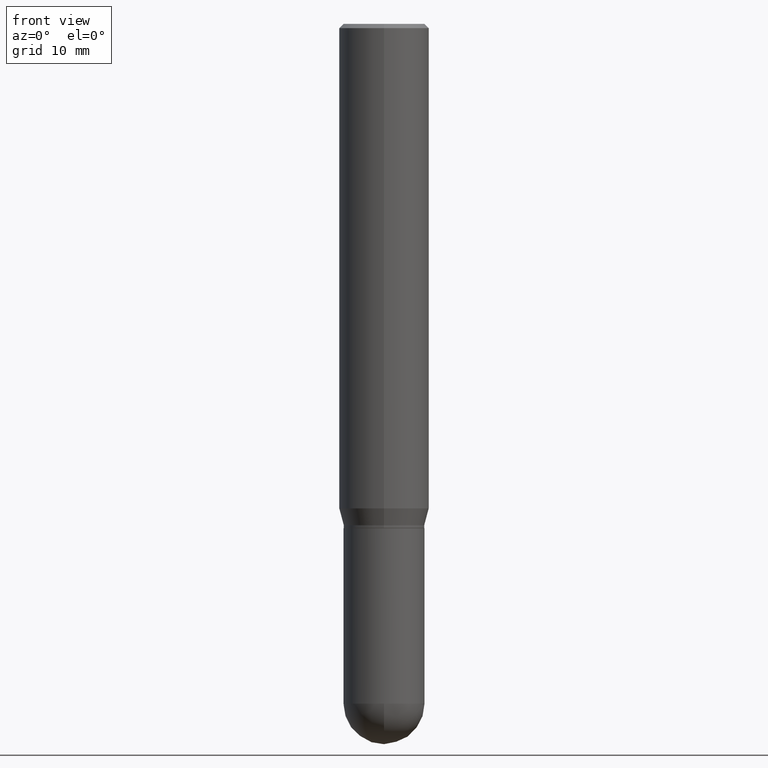
[diagram: clean part render]
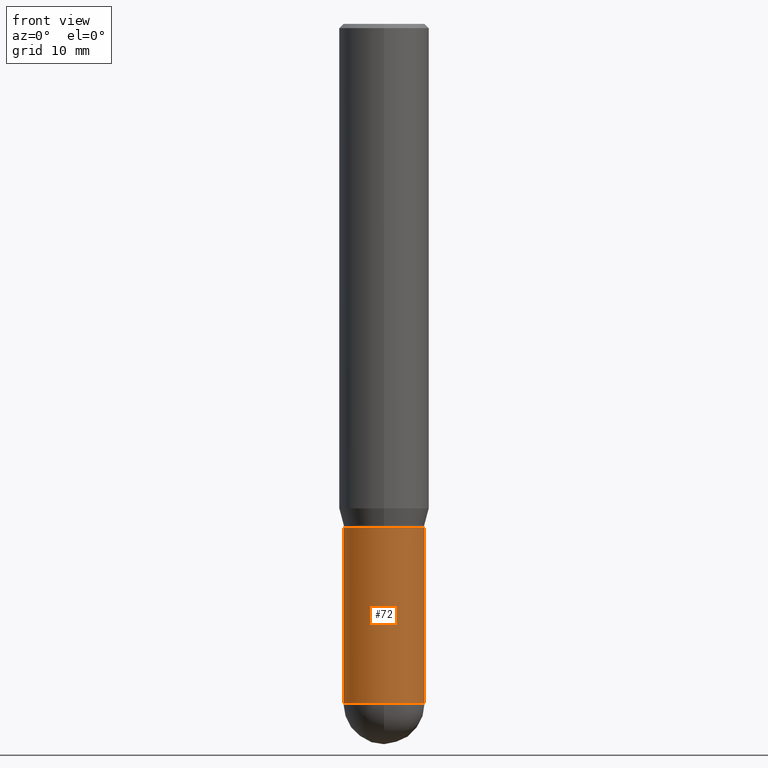
[diagram: same view with one face highlighted and labeled with its STEP entity id]
A machine part, front view. The second image highlights one B-rep face of the part: STEP entity #72.
In plain terms, the highlighted cylindrical surface (partial cylindrical patch) has radius 3.5712 mm, axis along (-0, 0, 1).
Its self-contained STEP definition (entity closure, byte-faithful):
#15 = AXIS2_PLACEMENT_3D ( 'NONE', #444, #243, #335 ) ;
#35 = ORIENTED_EDGE ( 'NONE', *, *, #281, .F. ) ;
#52 = CARTESIAN_POINT ( 'NONE',  ( 5.769839101313211634E-29, -8.237801070866517629E-15, -2.359399999999999942 ) ) ;
#63 = VERTEX_POINT ( 'NONE', #70 ) ;
#70 = CARTESIAN_POINT ( 'NONE',  ( 0.1406000000000000028, -7.091896895458194566E-15, -1.750000000000000222 ) ) ;
#72 = ADVANCED_FACE ( 'NONE', ( #293 ), #238, .T. ) ;
#85 = EDGE_CURVE ( 'NONE', #208, #63, #298, .T. ) ;
#93 = CARTESIAN_POINT ( 'NONE',  ( -9.990230864786434913E-16, -0.1406000000000083017, -2.359399999999999498 ) ) ;
#96 = CARTESIAN_POINT ( 'NONE',  ( 5.769839101313211634E-29, -8.237801070866517629E-15, -2.359399999999999942 ) ) ;
#97 = DIRECTION ( 'NONE',  ( 1.000000000000000000, -6.982962677686270655E-15, 0.000000000000000000 ) ) ;
#139 = ORIENTED_EDGE ( 'NONE', *, *, #313, .T. ) ;
#144 = VERTEX_POINT ( 'NONE', #398 ) ;
#155 = AXIS2_PLACEMENT_3D ( 'NONE', #96, #458, #97 ) ;
#161 = DIRECTION ( 'NONE',  ( 1.000000000000000000, -6.982962677686265133E-15, 0.000000000000000000 ) ) ;
#168 = CARTESIAN_POINT ( 'NONE',  ( 0.1406000000000000583, -8.155751259403701439E-15, -2.359399999999999942 ) ) ;
#175 = LINE ( 'NONE', #460, #391 ) ;
#207 = CARTESIAN_POINT ( 'NONE',  ( 4.279570410823989044E-29, -6.110092342975505460E-15, -1.750000000000000222 ) ) ;
#208 = VERTEX_POINT ( 'NONE', #168 ) ;
#211 = DIRECTION ( 'NONE',  ( -2.445468806185136597E-29, 3.491481338843145583E-15, 1.000000000000000000 ) ) ;
#220 = CARTESIAN_POINT ( 'NONE',  ( -0.1406000000000000028, -6.174923620442310269E-15, -1.750000000000000222 ) ) ;
#222 = AXIS2_PLACEMENT_3D ( 'NONE', #52, #211, #383 ) ;
#227 = ORIENTED_EDGE ( 'NONE', *, *, #236, .F. ) ;
#236 = EDGE_CURVE ( 'NONE', #342, #63, #499, .T. ) ;
#237 = ORIENTED_EDGE ( 'NONE', *, *, #338, .T. ) ;
#238 = CYLINDRICAL_SURFACE ( 'NONE', #15, 0.1406000000000000028 ) ;
#243 = DIRECTION ( 'NONE',  ( -2.445468806185136597E-29, 3.491481338843145583E-15, 1.000000000000000000 ) ) ;
#248 = VERTEX_POINT ( 'NONE', #93 ) ;
#254 = CARTESIAN_POINT ( 'NONE',  ( 0.1406000000000000028, -9.818045524826893030E-16, 6.855904546769086274E-30 ) ) ;
#281 = EDGE_CURVE ( 'NONE', #144, #342, #175, .T. ) ;
#293 = FACE_OUTER_BOUND ( 'NONE', #509, .T. ) ;
#297 = AXIS2_PLACEMENT_3D ( 'NONE', #207, #484, #161 ) ;
#298 = LINE ( 'NONE', #254, #377 ) ;
#311 = DIRECTION ( 'NONE',  ( -2.445468806185136877E-29, 3.491481338843145188E-15, 1.000000000000000000 ) ) ;
#313 = EDGE_CURVE ( 'NONE', #144, #248, #473, .T. ) ;
#335 = DIRECTION ( 'NONE',  ( 1.000000000000000000, -6.982962677686268288E-15, 4.876176775795936353E-29 ) ) ;
#338 = EDGE_CURVE ( 'NONE', #248, #208, #353, .T. ) ;
#342 = VERTEX_POINT ( 'NONE', #220 ) ;
#353 = CIRCLE ( 'NONE', #222, 0.1406000000000000305 ) ;
#377 = VECTOR ( 'NONE', #411, 39.37007874015748143 ) ;
#383 = DIRECTION ( 'NONE',  ( 1.000000000000000000, -6.982962677686270655E-15, 0.000000000000000000 ) ) ;
#391 = VECTOR ( 'NONE', #311, 39.37007874015748143 ) ;
#398 = CARTESIAN_POINT ( 'NONE',  ( -0.1406000000000000583, -6.174923620442310269E-15, -2.359399999999999942 ) ) ;
#411 = DIRECTION ( 'NONE',  ( -2.445468806185136877E-29, 3.491481338843145188E-15, 1.000000000000000000 ) ) ;
#444 = CARTESIAN_POINT ( 'NONE',  ( 0.000000000000000000, 0.000000000000000000, 0.000000000000000000 ) ) ;
#450 = ORIENTED_EDGE ( 'NONE', *, *, #85, .T. ) ;
#458 = DIRECTION ( 'NONE',  ( -2.445468806185136597E-29, 3.491481338843145583E-15, 1.000000000000000000 ) ) ;
#460 = CARTESIAN_POINT ( 'NONE',  ( -0.1406000000000000028, 9.990230864787008809E-16, -6.916022736898399140E-30 ) ) ;
#473 = CIRCLE ( 'NONE', #155, 0.1406000000000000305 ) ;
#484 = DIRECTION ( 'NONE',  ( -2.445468806185136597E-29, 3.491481338843145583E-15, 1.000000000000000000 ) ) ;
#499 = CIRCLE ( 'NONE', #297, 0.1406000000000000028 ) ;
#509 = EDGE_LOOP ( 'NONE', ( #35, #139, #237, #450, #227 ) ) ;